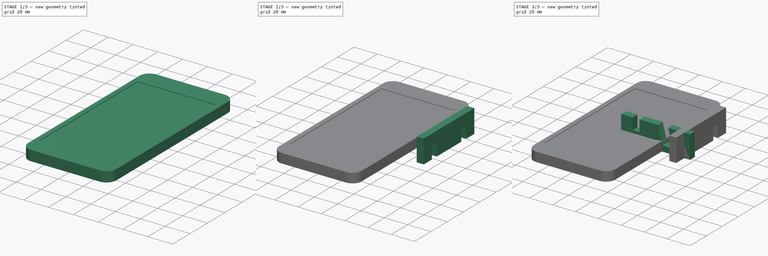
[diagram: build sequence overview — one tinted view per stage of 3, left to right]
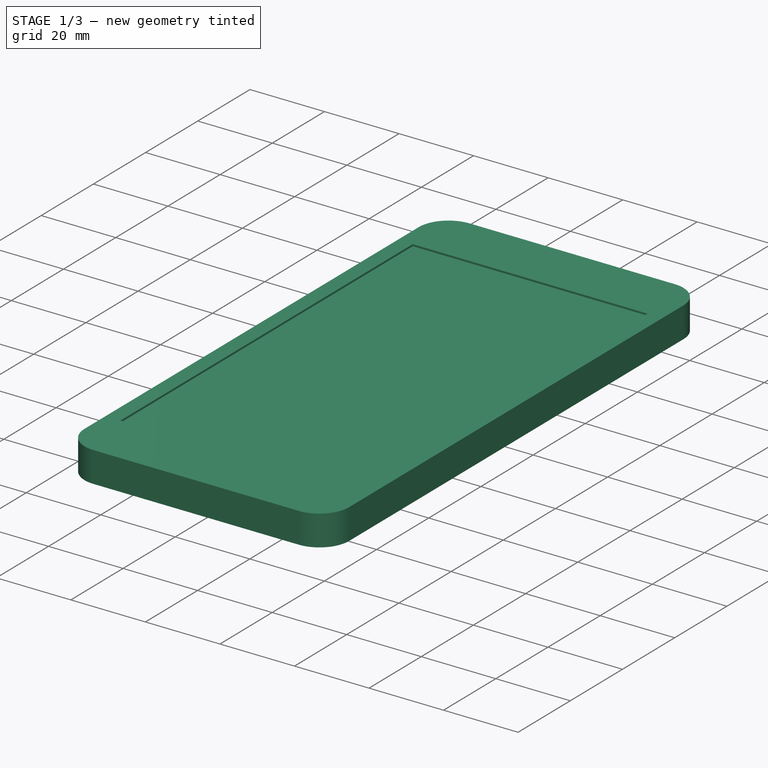
[diagram: stage 1 of 3 — iso view after this stage's code; geometry added in this stage tinted green]
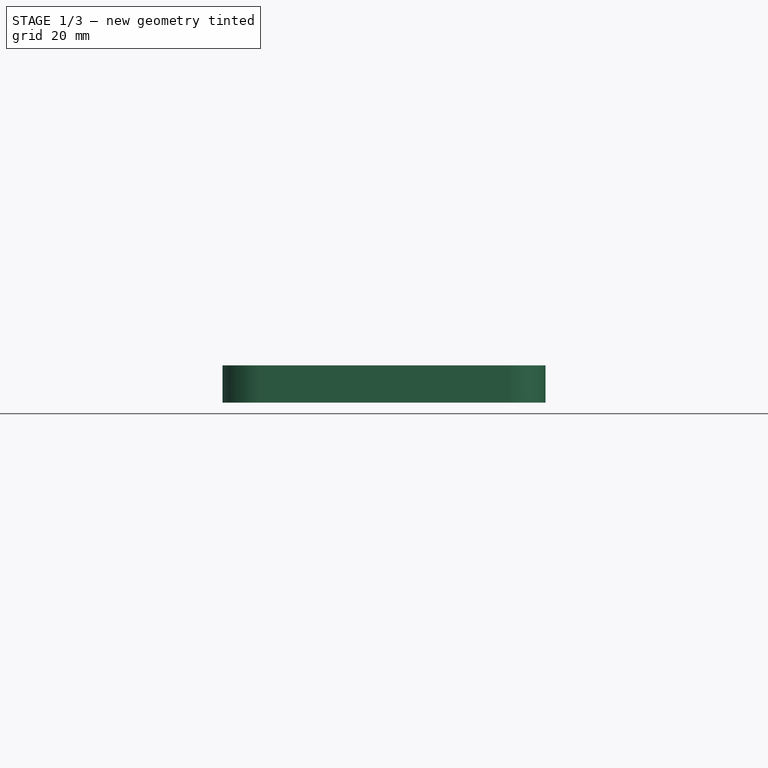
[diagram: stage 1 of 3 — front view after this stage's code; geometry added in this stage tinted green]
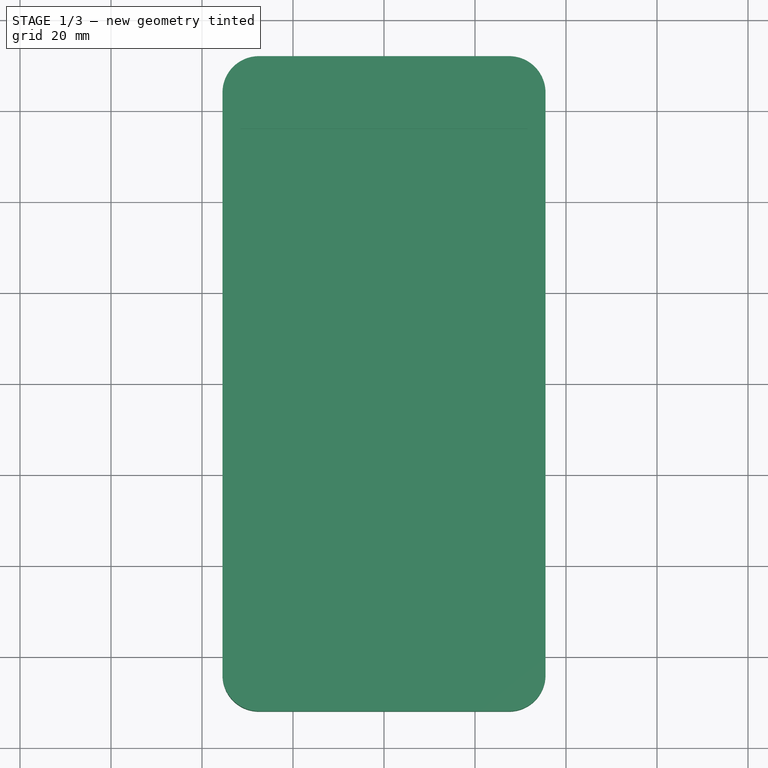
[diagram: stage 1 of 3 — top view after this stage's code; geometry added in this stage tinted green]
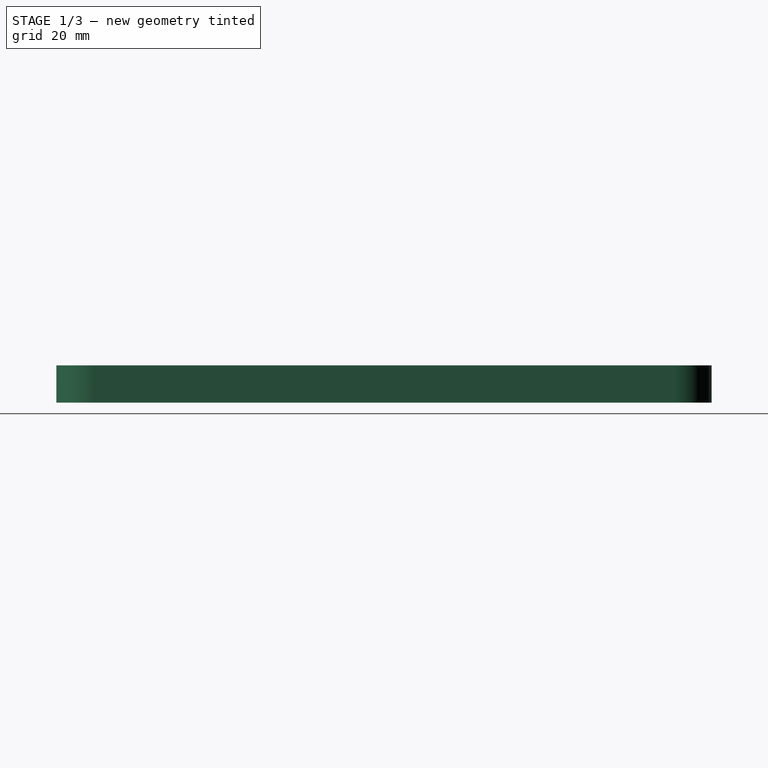
[diagram: stage 1 of 3 — right view after this stage's code; geometry added in this stage tinted green]
FCSTD DOCUMENT  (FreeCAD 0.16R6707 (Git))
Label: soporte-movil
License: All rights reserved
LicenseURL: http://en.wikipedia.org/wiki/All_rights_reserved
objects: Sketcher::SketchObject×4, App::DocumentObjectGroup×2, Part::Part2DObjectPython×2, Part::Extrusion×2, Part::FeaturePython×2, PartDesign::Pad×1, PartDesign::Pocket×1, Part::Feature×1
note: 15 computed .brp shape members not serialized (recipe doc carries the construction recipe); baked Part::Feature solids carry a one-line shape summary decoded from their .brp

FEATURE [Sketcher::SketchObject] Sketch002
  sketch-geometry (8):
    g0: LineSegment StartX=-27.5 StartY=72 StartZ=0 EndX=27.5 EndY=72 EndZ=0
    g1: LineSegment StartX=35.5 StartY=64 StartZ=0 EndX=35.5 EndY=-64 EndZ=0
    g2: LineSegment StartX=27.5 StartY=-72 StartZ=0 EndX=-27.5 EndY=-72 EndZ=0
    g3: LineSegment StartX=-35.5 StartY=-64 StartZ=0 EndX=-35.5 EndY=64 EndZ=0
    g4: ArcOfCircle CenterX=-27.5 CenterY=64 CenterZ=0 NormalX=0 NormalY=0 NormalZ=1 Radius=8 StartAngle=1.5708 EndAngle=3.14159
    g5: ArcOfCircle CenterX=27.5 CenterY=64 CenterZ=0 NormalX=0 NormalY=0 NormalZ=1 Radius=8 StartAngle=0 EndAngle=1.5708
    g6: ArcOfCircle CenterX=-27.5 CenterY=-64 CenterZ=0 NormalX=0 NormalY=0 NormalZ=1 Radius=8 StartAngle=3.14159 EndAngle=4.71239
    g7: ArcOfCircle CenterX=27.5 CenterY=-64 CenterZ=0 NormalX=0 NormalY=0 NormalZ=1 Radius=8 StartAngle=4.71239 EndAngle=6.28319
  constraints (19):
    c: Horizontal(g0)
    c: Horizontal(g2)
    c: Vertical(g1)
    c: Vertical(g3)
    c: Tangent(g0,g4) = 1.5708
    c: Tangent(g3,g4) = 1.5708
    c: Tangent(g0,g5) = 1.5708
    c: Tangent(g1,g5) = 1.5708
    c: Tangent(g2,g6) = 1.5708
    c: Tangent(g3,g6) = 1.5708
    c: Tangent(g1,g7) = 1.5708
    c: Tangent(g2,g7) = 1.5708
    c: Symmetric(g4,g7,g-1)
    c: Equal(g4,g5)
    c: Equal(g5,g6)
    c: Equal(g6,g7)
    c: Radius(g4) = 8
    c: DistanceY(g2,g0) = 144
    c: DistanceX(g3,g1) = 71
FEATURE [PartDesign::Pad] Pad  label="movil-cuerpo"
  Length = 8.2
  Length2 = 100
  Sketch = -> Sketch002
  Type = 0
FEATURE [Sketcher::SketchObject] Sketch003
  ExternalGeometry = -> [Pad]
  Placement = pos=(0,0,8.2) rot=(0,0,1;0rad)
  Support = -> Pad [Face10]
  sketch-geometry (4):
    g0: LineSegment StartX=-31.5 StartY=56 StartZ=0 EndX=31.5 EndY=56 EndZ=0
    g1: LineSegment StartX=31.5 StartY=56 StartZ=0 EndX=31.5 EndY=-56 EndZ=0
    g2: LineSegment StartX=31.5 StartY=-56 StartZ=0 EndX=-31.5 EndY=-56 EndZ=0
    g3: LineSegment StartX=-31.5 StartY=-56 StartZ=0 EndX=-31.5 EndY=56 EndZ=0
  constraints (12):
    c: Coincident(g0,g1)
    c: Coincident(g1,g2)
    c: Coincident(g2,g3)
    c: Coincident(g3,g0)
    c: Horizontal(g0)
    c: Horizontal(g2)
    c: Vertical(g1)
    c: Vertical(g3)
    c: Symmetric(g0,g0,g-2)
    c: DistanceX(g-3,g0) = 4
    c: DistanceY(g0,g-4) = 16
    c: Symmetric(g0,g1,g-1)
FEATURE [PartDesign::Pocket] Pocket  label="pantalla-movil"
  Length = 0.5
  Sketch = -> Sketch003
  Type = 0
FEATURE [App::DocumentObjectGroup] Grupo001  label="Movil-modelo"
  Group = -> [Pad,Pocket]
FEATURE [Part::Feature] Pocket001  label="movil"
  Placement = pos=(17.3843,13.5,74.5467) rot=(0.519988,0.519988,0.677661;1.95044rad)
  shape: bbox 45.19 x 71 x 141.2 mm, 15 faces (baked)
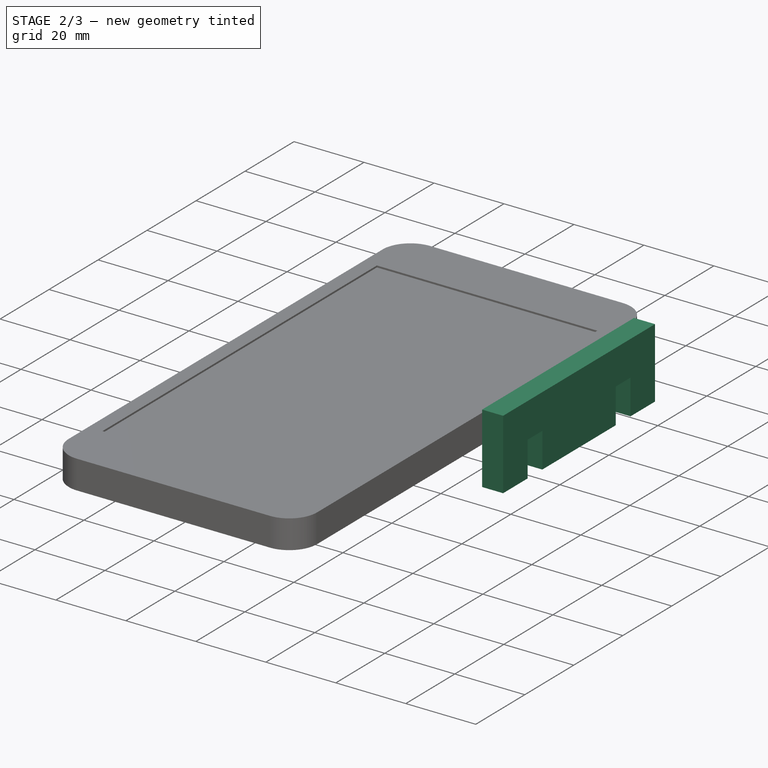
[diagram: stage 2 of 3 — iso view after this stage's code; geometry added in this stage tinted green]
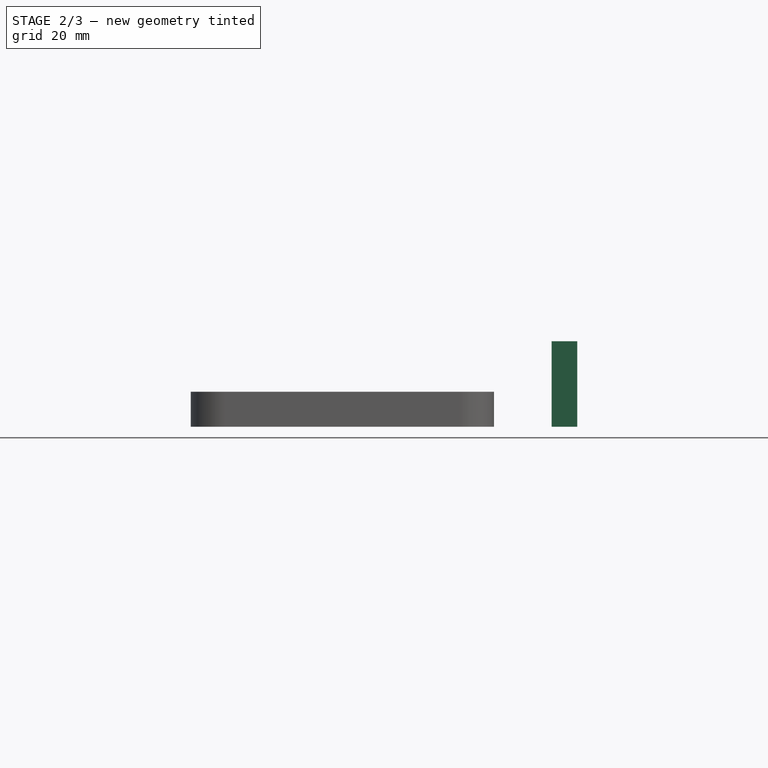
[diagram: stage 2 of 3 — front view after this stage's code; geometry added in this stage tinted green]
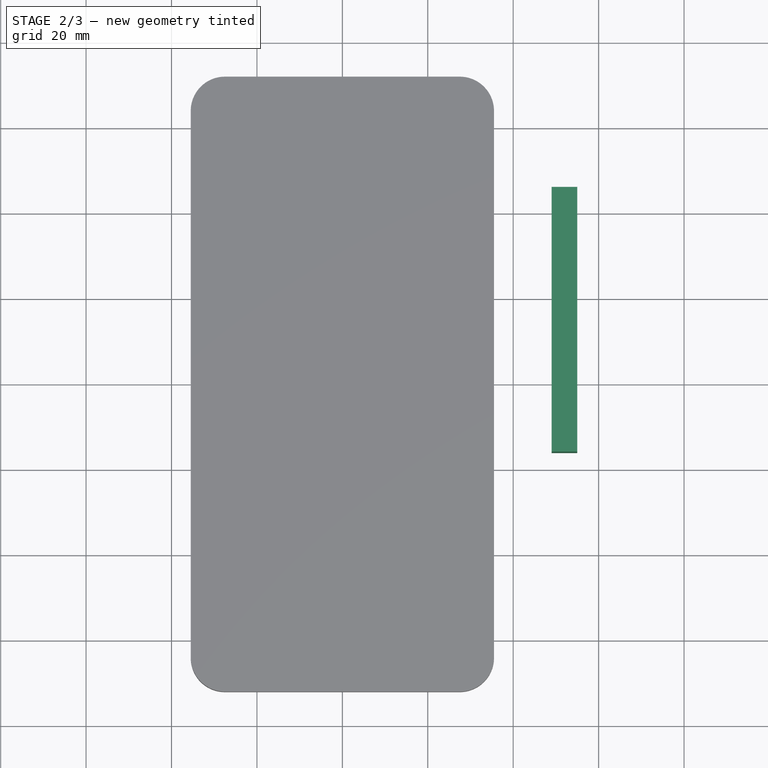
[diagram: stage 2 of 3 — top view after this stage's code; geometry added in this stage tinted green]
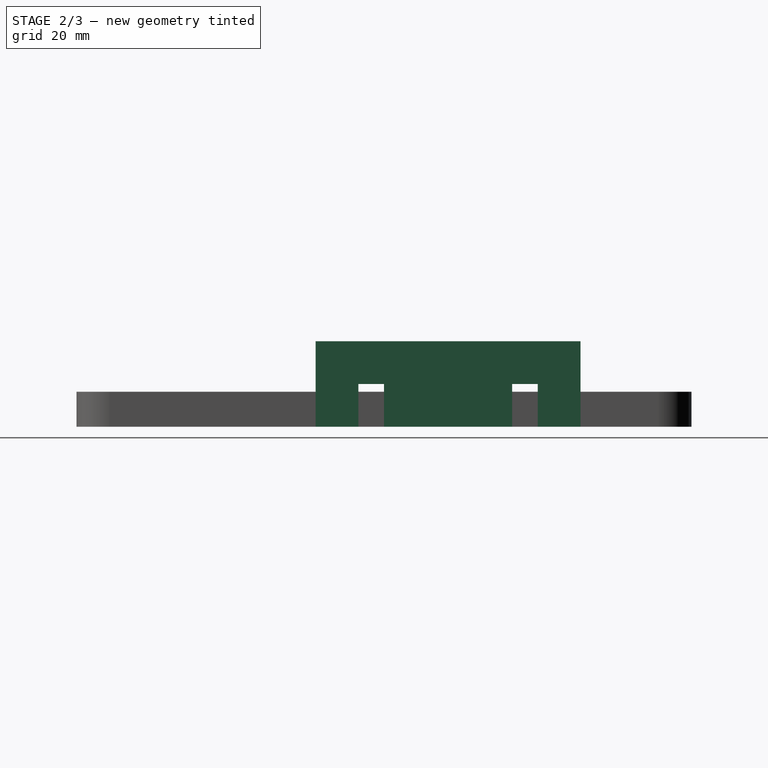
[diagram: stage 2 of 3 — right view after this stage's code; geometry added in this stage tinted green]
FEATURE [Part::Extrusion] Extrude001  label="Pieza-frontal-trasera"
  Base = -> Clone2D001
  Dir = (0,0,6)
  Placement = pos=(10,-16,-27) rot=(0.57735,0.57735,0.57735;2.0944rad)
  Solid = true
FEATURE [Part::FeaturePython] Clone001  label="Pieza-frontal-delantera"  # Draft clone (typed FeaturePython)
  Objects = -> [Extrude001]
  Placement = pos=(49,-16,-27) rot=(0.57735,0.57735,0.57735;2.0944rad)
  Scale = (1,1,1)
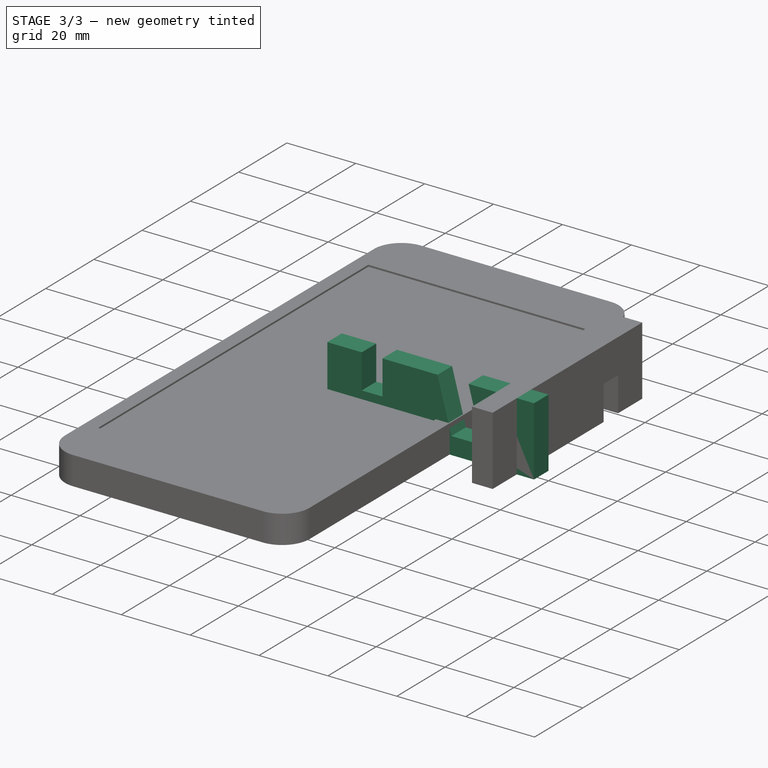
[diagram: stage 3 of 3 — iso view after this stage's code; geometry added in this stage tinted green]
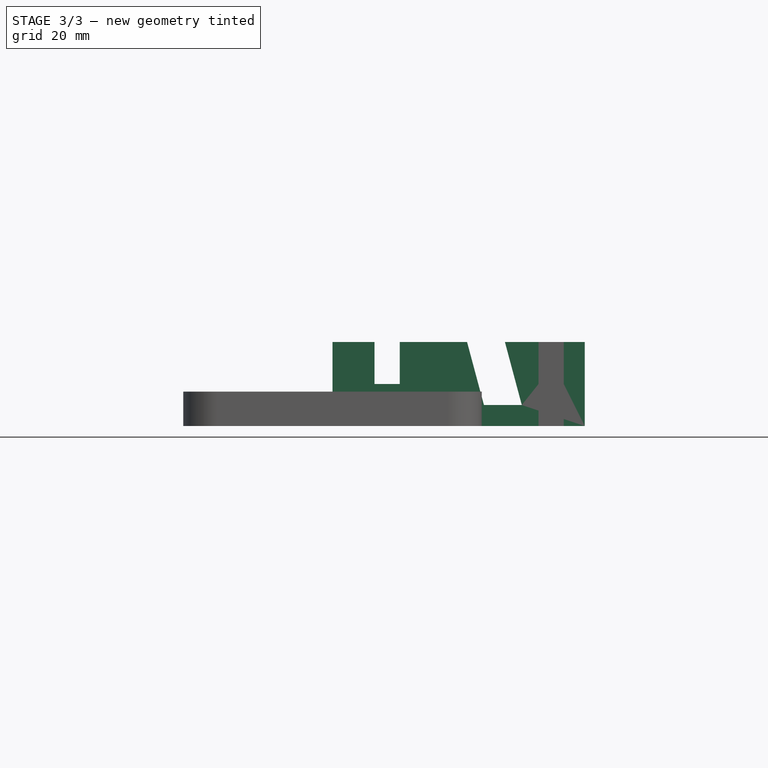
[diagram: stage 3 of 3 — front view after this stage's code; geometry added in this stage tinted green]
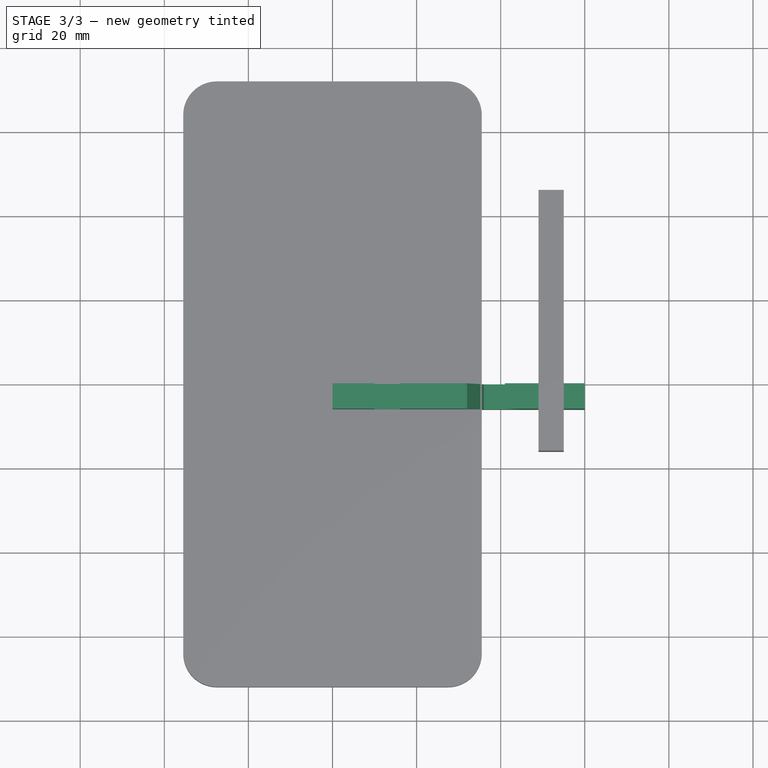
[diagram: stage 3 of 3 — top view after this stage's code; geometry added in this stage tinted green]
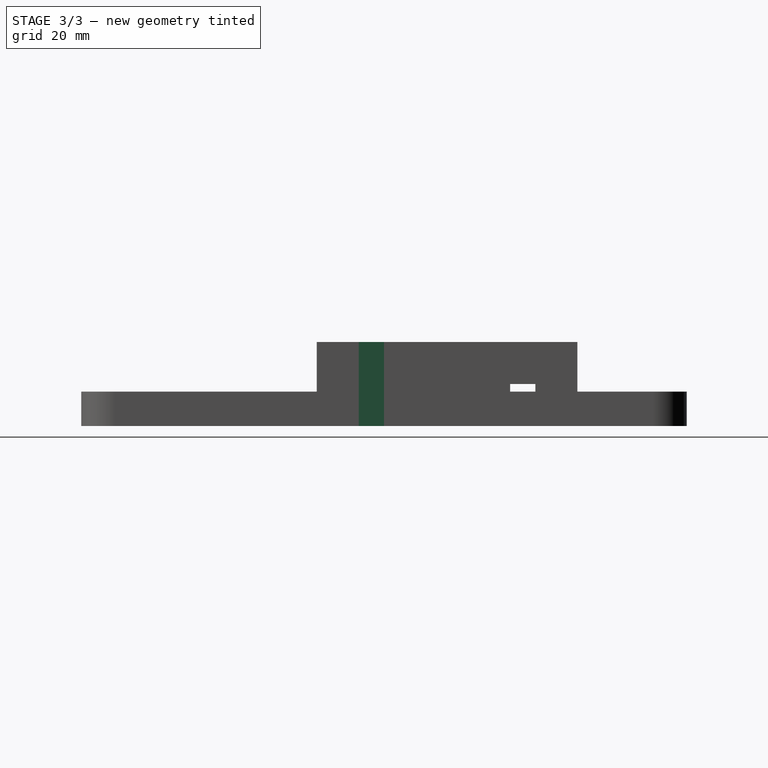
[diagram: stage 3 of 3 — right view after this stage's code; geometry added in this stage tinted green]
FEATURE [Sketcher::SketchObject] Sketch  label="Pieza lateral"
  sketch-geometry (16):
    g0: LineSegment StartX=0 StartY=0 StartZ=0 EndX=60 EndY=0 EndZ=0
    g1: LineSegment StartX=60 StartY=0 StartZ=0 EndX=60 EndY=20 EndZ=0
    g2: LineSegment StartX=60 StartY=20 StartZ=0 EndX=55 EndY=20 EndZ=0
    g3: LineSegment StartX=0 StartY=20 StartZ=0 EndX=0 EndY=0 EndZ=0
    g4: LineSegment StartX=10 StartY=20 StartZ=0 EndX=10 EndY=10 EndZ=0
    g5: LineSegment StartX=10 StartY=10 StartZ=0 EndX=16 EndY=10 EndZ=0
    g6: LineSegment StartX=16 StartY=10 StartZ=0 EndX=16 EndY=20 EndZ=0
    g7: LineSegment StartX=10 StartY=20 StartZ=0 EndX=0 EndY=20 EndZ=0
    g8: LineSegment StartX=49 StartY=20 StartZ=0 EndX=49 EndY=10 EndZ=0
    g9: LineSegment StartX=49 StartY=10 StartZ=0 EndX=55 EndY=10 EndZ=0
    g10: LineSegment StartX=55 StartY=10 StartZ=0 EndX=55 EndY=20 EndZ=0
    g11: LineSegment StartX=16 StartY=20 StartZ=0 EndX=32 EndY=20 EndZ=0
    g12: LineSegment StartX=32 StartY=20 StartZ=0 EndX=36.0192 EndY=5 EndZ=0
    g13: LineSegment StartX=36.0192 StartY=5 StartZ=0 EndX=45.0192 EndY=5 EndZ=0
    g14: LineSegment StartX=45.0192 StartY=5 StartZ=0 EndX=41 EndY=20 EndZ=0
    g15: LineSegment StartX=41 StartY=20 StartZ=0 EndX=49 EndY=20 EndZ=0
  constraints (48):
    c: Coincident(g0,g1)
    c: Coincident(g1,g2)
    c: Coincident(g7,g3)
    c: Coincident(g3,g0)
    c: Horizontal(g0)
    c: Horizontal(g2)
    c: Vertical(g1)
    c: Vertical(g3)
    c: Coincident(g0,g-1)
    c: DistanceX(g7,g2) = 60
    c: DistanceY(g1,g1) = 20
    c: Vertical(g4)
    c: Coincident(g4,g5)
    c: Horizontal(g5)
    c: Coincident(g5,g6)
    c: Vertical(g6)
    c: PointOnObject(g7,g4)
    c: Tangent(g2,g7)
    c: Coincident(g4,g7)
    c: DistanceX(g5,g5) = 6
    c: Vertical(g8)
    c: Coincident(g8,g9)
    c: Horizontal(g9)
    c: Coincident(g9,g10)
    c: Vertical(g10)
    c: PointOnObject(g2,g10)
    c: PointOnObject(g8,g5)
    c: DistanceY(g6,g6) = 10
    c: DistanceX(g7,g7) = 10
    c: DistanceX(g2,g2) = 5
    c: Equal(g9,g5)
    c: Coincident(g6,g11)
    c: Horizontal(g11)
    c: Coincident(g11,g12)
    c: Coincident(g12,g13)
    c: Horizontal(g13)
    c: Coincident(g13,g14)
    c: Coincident(g14,g15)
    c: Coincident(g15,g8)
    c: Horizontal(g15)
    c: PointOnObject(g8,g2)
    c: PointOnObject(g14,g11)
    c: Parallel(g12,g14)
    c: Angle(g12,g0) = 1.309
    c: DistanceX(g13,g13) = 9
    c: DistanceX(g15,g15) = 8
    c: Coincident(g10,g2)
    c: DistanceY(g0,g13) = 5
FEATURE [Sketcher::SketchObject] Sketch001  label="Pieza-frontal"
  Placement = pos=(31,27,0) rot=(0,0,1;0rad)
  sketch-geometry (12):
    g0: LineSegment StartX=-31 StartY=0 StartZ=0 EndX=-21 EndY=0 EndZ=0
    g1: LineSegment StartX=-21 StartY=0 StartZ=0 EndX=-21 EndY=10 EndZ=0
    g2: LineSegment StartX=-31 StartY=0 StartZ=0 EndX=-31 EndY=20 EndZ=0
    g3: LineSegment StartX=-31 StartY=20 StartZ=0 EndX=31 EndY=20 EndZ=0
    g4: LineSegment StartX=31 StartY=20 StartZ=0 EndX=31 EndY=0 EndZ=0
    g5: LineSegment StartX=31 StartY=0 StartZ=0 EndX=21 EndY=0 EndZ=0
    g6: LineSegment StartX=21 StartY=0 StartZ=0 EndX=21 EndY=10 EndZ=0
    g7: LineSegment StartX=-21 StartY=10 StartZ=0 EndX=-15 EndY=10 EndZ=0
    g8: LineSegment StartX=-15 StartY=10 StartZ=0 EndX=-15 EndY=0 EndZ=0
    g9: LineSegment StartX=-15 StartY=0 StartZ=0 EndX=15 EndY=0 EndZ=0
    g10: LineSegment StartX=15 StartY=0 StartZ=0 EndX=15 EndY=10 EndZ=0
    g11: LineSegment StartX=15 StartY=10 StartZ=0 EndX=21 EndY=10 EndZ=0
  constraints (34):
    c: PointOnObject(g0,g-1)
    c: PointOnObject(g0,g-1)
    c: Coincident(g0,g1)
    c: Vertical(g1)
    c: Coincident(g0,g2)
    c: Vertical(g2)
    c: Coincident(g2,g3)
    c: Horizontal(g3)
    c: Coincident(g3,g4)
    c: Coincident(g4,g5)
    c: Coincident(g5,g6)
    c: Vertical(g6)
    c: Vertical(g4)
    c: Horizontal(g5)
    c: Symmetric(g0,g5,g-2)
    c: Symmetric(g3,g2,g-2)
    c: Coincident(g1,g7)
    c: Horizontal(g7)
    c: Coincident(g7,g8)
    c: Vertical(g8)
    c: Coincident(g8,g9)
    c: Horizontal(g9)
    c: Coincident(g9,g10)
    c: Vertical(g10)
    c: Coincident(g10,g11)
    c: Coincident(g11,g6)
    c: Horizontal(g11)
    c: PointOnObject(g8,g-1)
    c: Symmetric(g7,g10,g-2)
    c: DistanceX(g7,g7) = 6
    c: DistanceX(g8,g9) = 30
    c: DistanceX(g0,g0) = 10
    c: DistanceY(g4,g4) = 20
    c: DistanceY(g1,g1) = 10
FEATURE [App::DocumentObjectGroup] Grupo  label="Planos-2D-corte"
  Group = -> [Sketch,Sketch001]
FEATURE [Part::Part2DObjectPython] Clone2D  label="Lateral-sketch"  # Draft 2D object (typed FeaturePython)
  Objects = -> [Sketch]
  Scale = (1,1,1)
FEATURE [Part::Part2DObjectPython] Clone2D001  label="frontal-sketch"  # Draft 2D object (typed FeaturePython)
  Objects = -> [Sketch001]
  Placement = pos=(31,27,0) rot=(0,0,1;0rad)
  Scale = (1,1,1)
FEATURE [Part::Extrusion] Extrude  label="Pieza-lateral-izquierda"
  Base = -> Clone2D
  Dir = (0,0,6)
  Placement = pos=(0,36,0) rot=(1,0,0;1.5708rad)
  Solid = true
FEATURE [Part::FeaturePython] Clone  label="Pieza-lateral-derecha"  # Draft clone (typed FeaturePython)
  Objects = -> [Extrude]
  Placement = pos=(0,0,0) rot=(1,0,0;1.5708rad)
  Scale = (1,1,1)
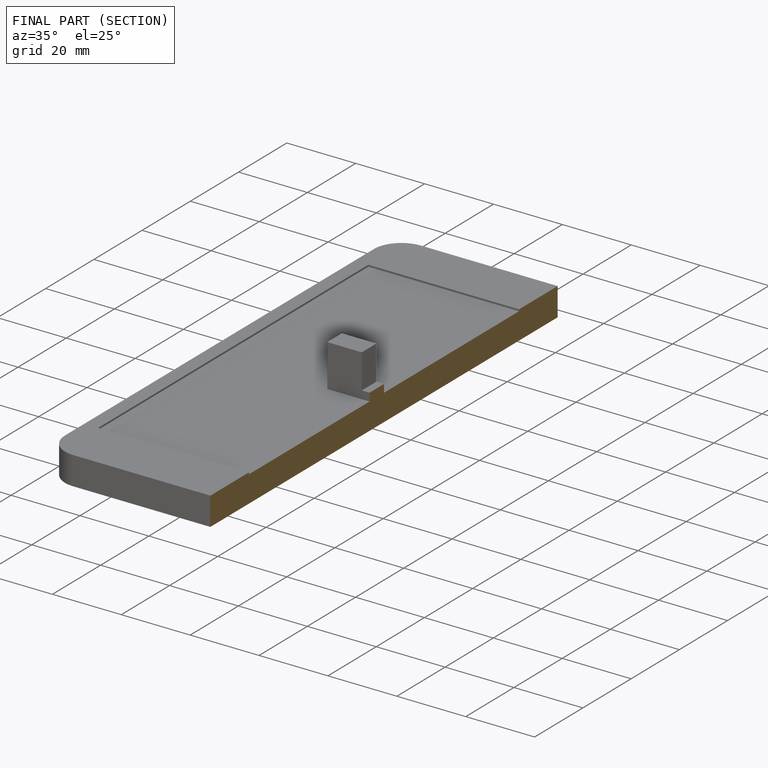
[diagram: finished part — half-section view (interior)]
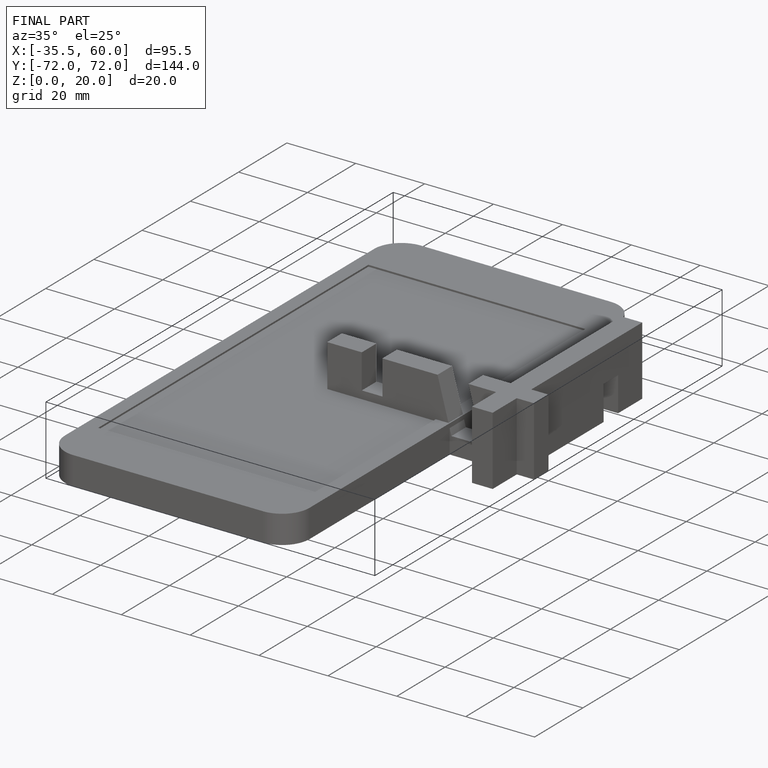
[diagram: finished part — iso view with bounding-box wireframe]
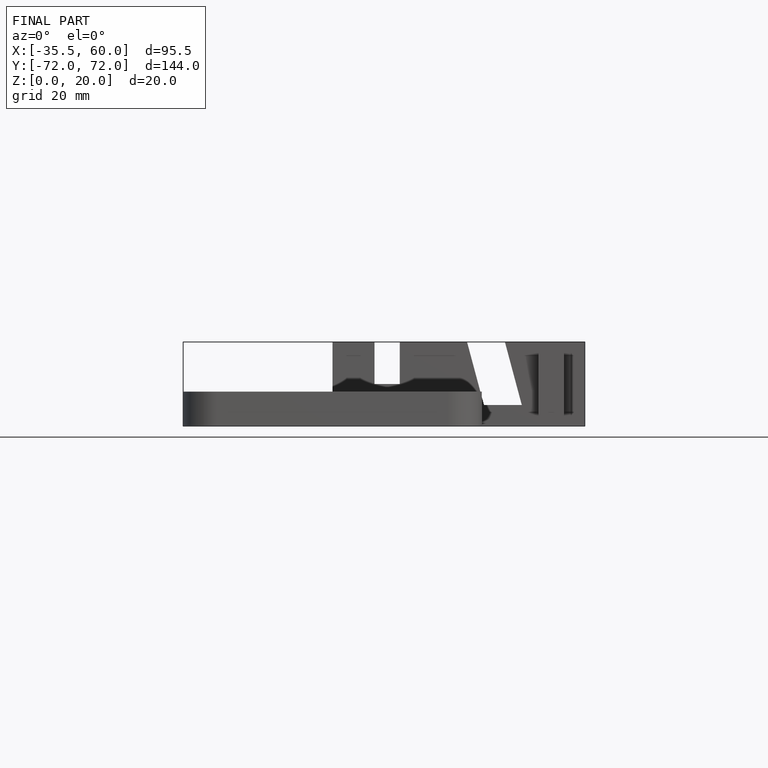
[diagram: finished part — front view with bounding-box wireframe]
